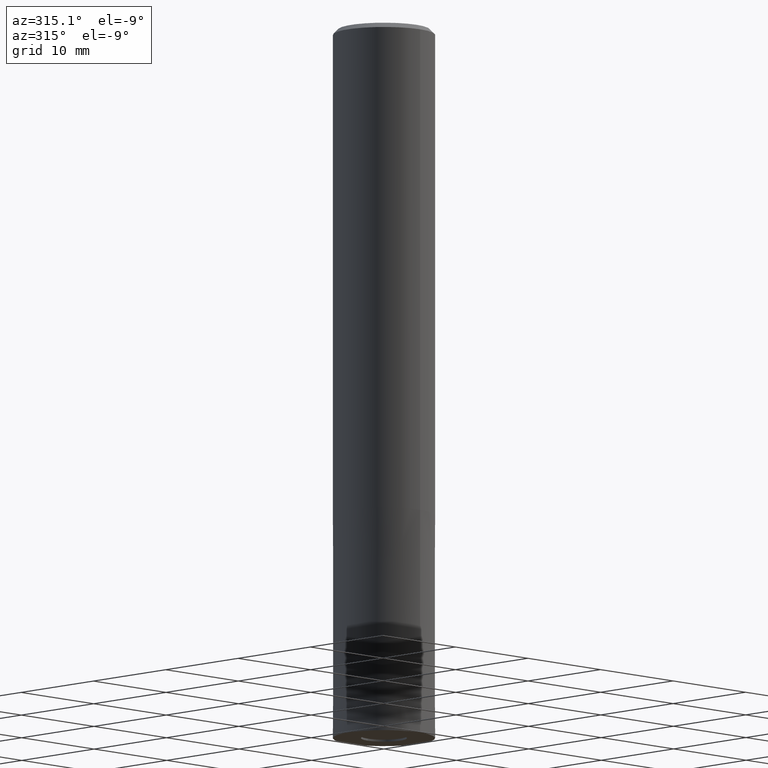
[diagram: clean part render]
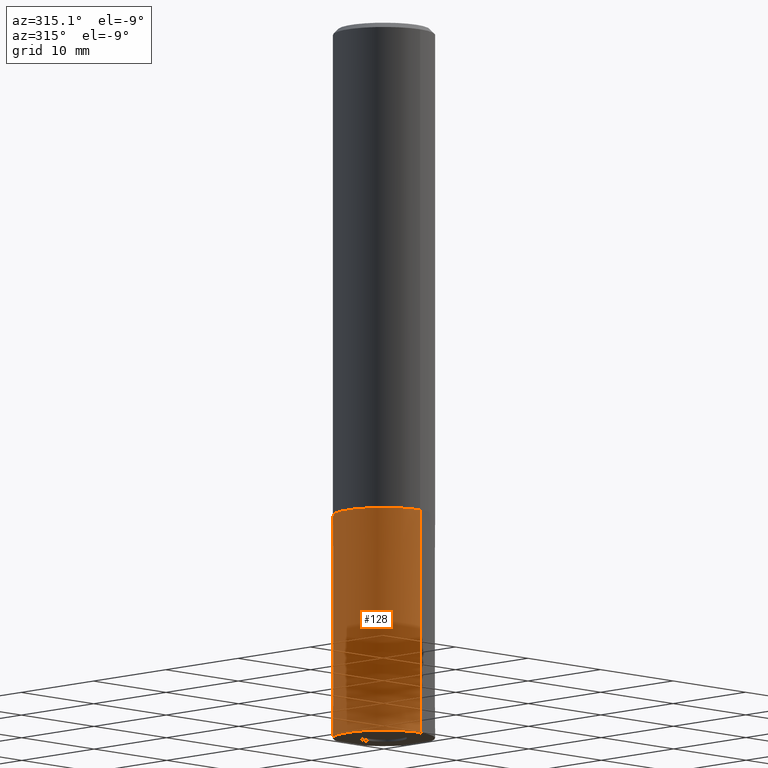
[diagram: same view with one face highlighted and labeled with its STEP entity id]
A machine part, auxiliary view. The second image highlights one B-rep face of the part: STEP entity #128.
In plain terms, the highlighted conical surface has half-angle 0 deg.
Its self-contained STEP definition (entity closure, byte-faithful):
#102=EDGE_CURVE('',#160,#210,#247,.T.);
#114=EDGE_CURVE('',#174,#210,#263,.T.);
#126=EDGE_CURVE('',#160,#206,#276,.T.);
#128=ADVANCED_FACE('',(#278),#279,.T.);
#160=VERTEX_POINT('',#319);
#174=VERTEX_POINT('',#334);
#206=VERTEX_POINT('',#368);
#210=VERTEX_POINT('',#372);
#212=EDGE_CURVE('',#206,#174,#374,.T.);
#247=CIRCLE('',#403,5.0);
#263=LINE('',#422,#423);
#276=LINE('',#441,#442);
#278=FACE_OUTER_BOUND('',#444,.T.);
#279=CONICAL_SURFACE('',#445,4.99995,4.54545454541265E-006);
#319=CARTESIAN_POINT('',(6.12303176911189E-016,-5.0,-70.0));
#334=CARTESIAN_POINT('',(0.0,4.9999,-48.0));
#368=CARTESIAN_POINT('',(6.1229093084765E-016,-4.9999,-48.0));
#372=CARTESIAN_POINT('',(0.0,5.0,-70.0));
#374=CIRCLE('',#562,4.9999);
#403=AXIS2_PLACEMENT_3D('',#580,#581,#582);
#422=CARTESIAN_POINT('',(-6.12297053879419E-016,4.99995,-59.0));
#423=VECTOR('',#606,1.0);
#441=CARTESIAN_POINT('',(6.12297053879419E-016,-4.99995,-59.0));
#442=VECTOR('',#622,1.0);
#444=EDGE_LOOP('',(#624,#625,#626,#627));
#445=AXIS2_PLACEMENT_3D('',#628,#629,#630);
#562=AXIS2_PLACEMENT_3D('',#743,#744,#745);
#580=CARTESIAN_POINT('',(0.0,0.0,-70.0));
#581=DIRECTION('',(0.0,0.0,-1.0));
#582=DIRECTION('',(0.0,1.0,0.0));
#606=DIRECTION('',(-5.56639251730397E-022,4.545454545397E-006,-0.999999999989669));
#622=DIRECTION('',(-5.56639251730396E-022,4.545454545397E-006,0.999999999989669));
#624=ORIENTED_EDGE('',*,*,#114,.T.);
#625=ORIENTED_EDGE('',*,*,#102,.F.);
#626=ORIENTED_EDGE('',*,*,#126,.T.);
#627=ORIENTED_EDGE('',*,*,#212,.T.);
#628=CARTESIAN_POINT('',(0.0,0.0,-59.0));
#629=DIRECTION('',(0.0,-0.0,-1.0));
#630=DIRECTION('',(0.0,1.0,0.0));
#743=CARTESIAN_POINT('',(0.0,0.0,-48.0));
#744=DIRECTION('',(0.0,0.0,-1.0));
#745=DIRECTION('',(0.0,1.0,0.0));